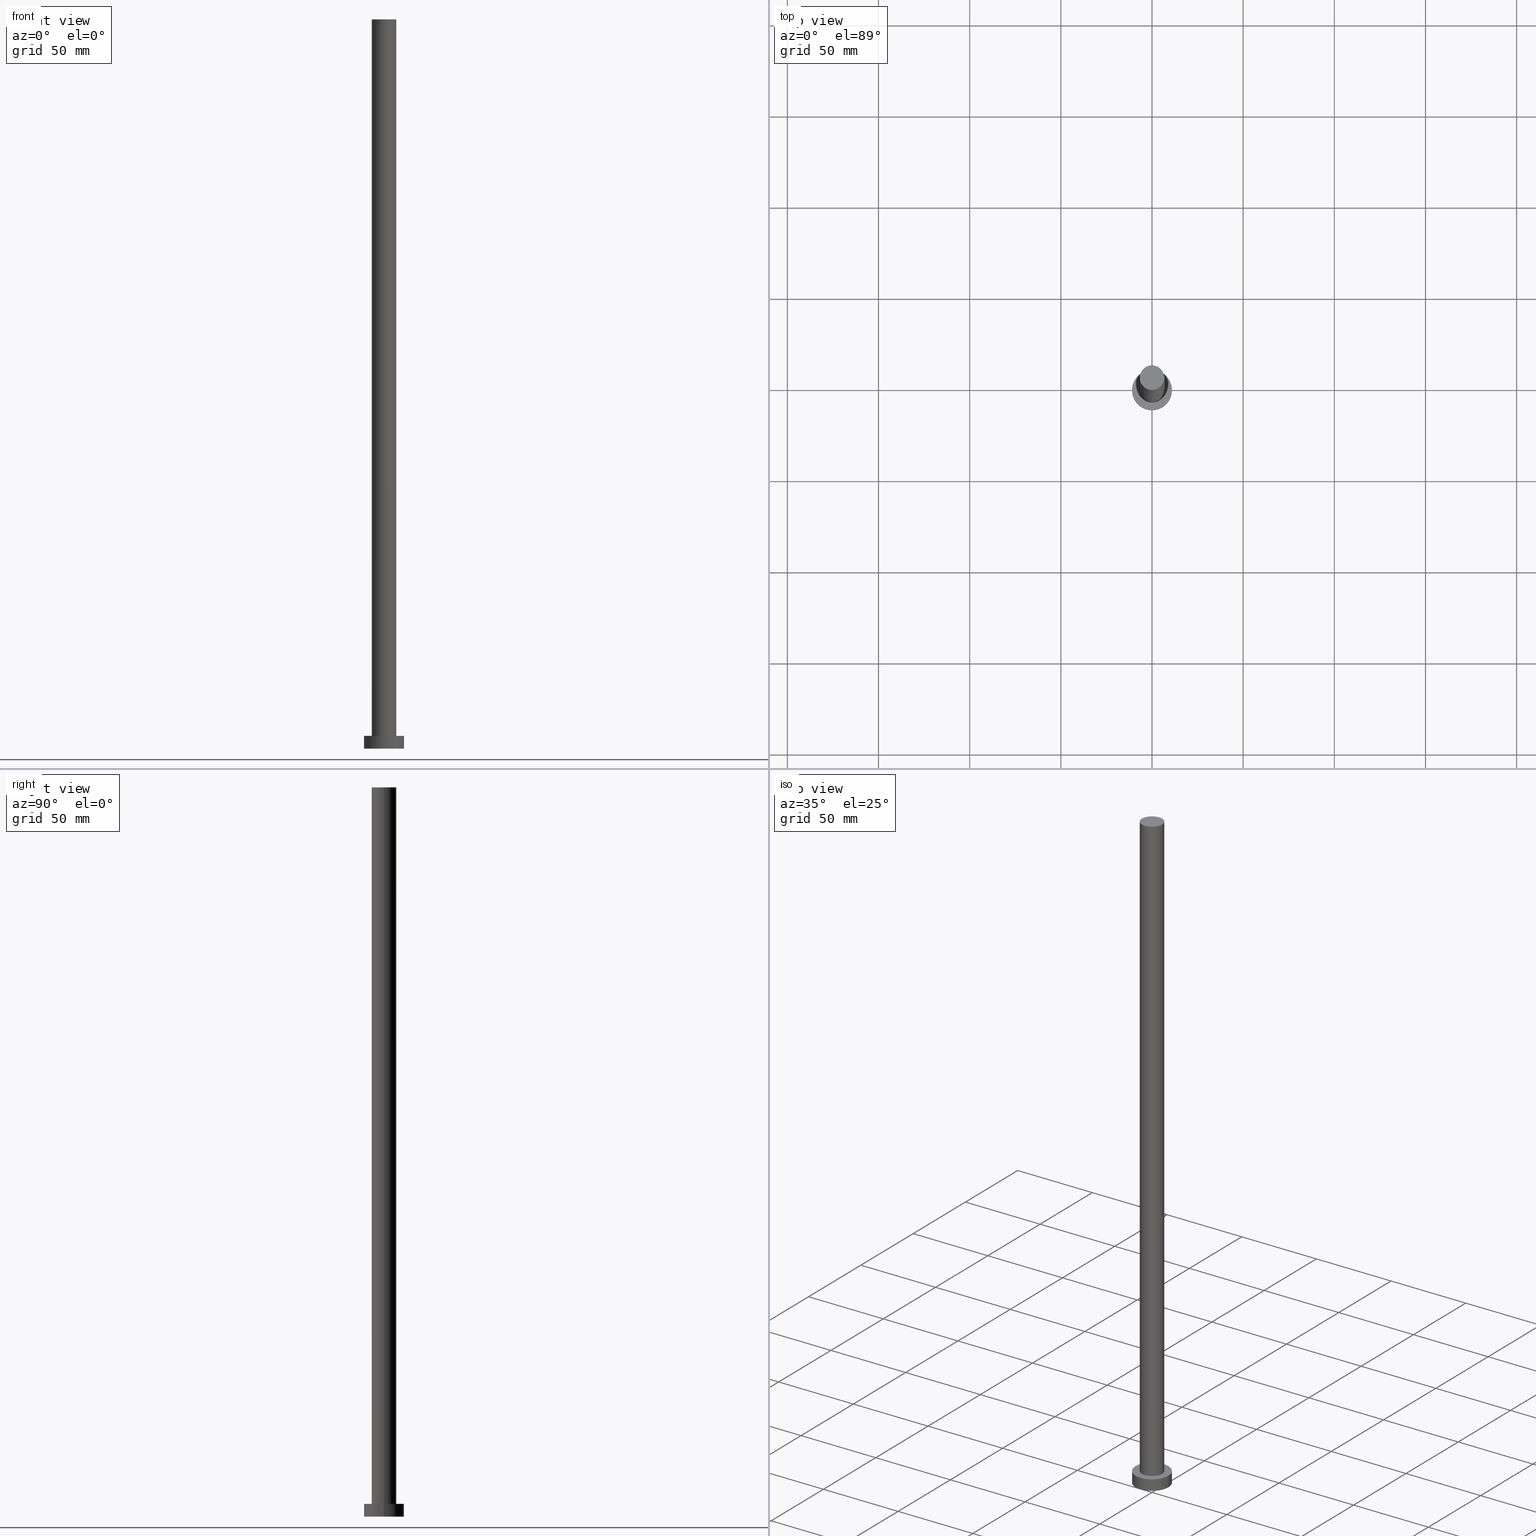
[diagram: canonical four-view strip — front | top / right | iso, engineering-drawing reading convention]
A machine part, canonical four-view strip (front | top / right | iso — engineering-drawing reading convention). The complete STEP part file that produces these views, byte-faithful:
ISO-10303-21;
HEADER;
FILE_DESCRIPTION (( 'STEP AP203' ),
    '1' );
FILE_NAME ('d360.STEP',
    '2023-02-13T10:44:24',
    ( '' ),
    ( '' ),
    'SwSTEP 2.0',
    'SolidWorks 2019',
    '' );
FILE_SCHEMA (( 'CONFIG_CONTROL_DESIGN' ));
ENDSEC;

DATA;
#1 = EDGE_CURVE ( 'NONE', #122, #144, #81, .T. ) ;
#2 = PRODUCT_DEFINITION_SHAPE ( 'NONE', 'NONE',  #117 ) ;
#3 = ORIENTED_EDGE ( 'NONE', *, *, #1, .F. ) ;
#4 = LOCAL_TIME ( 11, 44, 24.00000000000000000, #175 ) ;
#5 = CALENDAR_DATE ( 2023, 13, 2 ) ;
#6 = VERTEX_POINT ( 'NONE', #223 ) ;
#7 = MECHANICAL_CONTEXT ( 'NONE', #124, 'mechanical' ) ;
#8 = APPLICATION_PROTOCOL_DEFINITION ( 'international standard', 'config_control_design', 1994, #89 ) ;
#9 = CC_DESIGN_PERSON_AND_ORGANIZATION_ASSIGNMENT ( #218, #77, ( #86 ) ) ;
#10 = DESIGN_CONTEXT ( 'detailed design', #89, 'design' ) ;
#11 = EDGE_LOOP ( 'NONE', ( #36, #118 ) ) ;
#12 = CIRCLE ( 'NONE', #154, 11.00000000000000000 ) ;
#13 = APPROVAL_PERSON_ORGANIZATION ( #153, #207, #38 ) ;
#14 = CARTESIAN_POINT ( 'NONE',  ( 11.00000000000000000, 1.347111479062088405E-15, 7.000000000000000000 ) ) ;
#15 = CARTESIAN_POINT ( 'NONE',  ( 0.000000000000000000, 0.000000000000000000, 7.000000000000000000 ) ) ;
#16 = DIRECTION ( 'NONE',  ( 1.000000000000000000, 0.000000000000000000, -0.000000000000000000 ) ) ;
#17 = CC_DESIGN_APPROVAL ( #207, ( #117 ) ) ;
#18 = CARTESIAN_POINT ( 'NONE',  ( 6.750000000000000000, 8.266365894244634333E-16, 400.0000000000000000 ) ) ;
#19 = CARTESIAN_POINT ( 'NONE',  ( 0.000000000000000000, 0.000000000000000000, 400.0000000000000000 ) ) ;
#20 = PERSON_AND_ORGANIZATION ( #125, #182 ) ;
#21 = ORIENTED_EDGE ( 'NONE', *, *, #1, .T. ) ;
#22 = AXIS2_PLACEMENT_3D ( 'NONE', #26, #102, #143 ) ;
#23 = PERSON_AND_ORGANIZATION ( #125, #182 ) ;
#24 = EDGE_LOOP ( 'NONE', ( #138, #58, #21, #98 ) ) ;
#25 = SECURITY_CLASSIFICATION ( '', '', #197 ) ;
#26 = CARTESIAN_POINT ( 'NONE',  ( 0.000000000000000000, 0.000000000000000000, 0.000000000000000000 ) ) ;
#27 = PERSON_AND_ORGANIZATION ( #125, #182 ) ;
#28 = APPLICATION_PROTOCOL_DEFINITION ( 'international standard', 'config_control_design', 1994, #124 ) ;
#29 = CALENDAR_DATE ( 2023, 13, 2 ) ;
#30 = FACE_BOUND ( 'NONE', #202, .T. ) ;
#31 = DIRECTION ( 'NONE',  ( 1.000000000000000000, 0.000000000000000000, 0.000000000000000000 ) ) ;
#32 = DIRECTION ( 'NONE',  ( -0.000000000000000000, -0.000000000000000000, -1.000000000000000000 ) ) ;
#33 = CYLINDRICAL_SURFACE ( 'NONE', #76, 6.750000000000000000 ) ;
#34 = DIRECTION ( 'NONE',  ( 1.000000000000000000, 0.000000000000000000, 0.000000000000000000 ) ) ;
#35 = PERSON_AND_ORGANIZATION ( #125, #182 ) ;
#36 = ORIENTED_EDGE ( 'NONE', *, *, #180, .F. ) ;
#37 = APPROVAL_PERSON_ORGANIZATION ( #82, #52, #65 ) ;
#38 = APPROVAL_ROLE ( '' ) ;
#39 = DATE_AND_TIME ( #217, #231 ) ;
#40 = ADVANCED_FACE ( 'NONE', ( #83 ), #164, .T. ) ;
#41 = DIRECTION ( 'NONE',  ( 0.000000000000000000, 0.000000000000000000, 1.000000000000000000 ) ) ;
#42 = EDGE_LOOP ( 'NONE', ( #237, #54, #137, #3 ) ) ;
#43 = APPROVAL_STATUS ( 'not_yet_approved' ) ;
#44 = AXIS2_PLACEMENT_3D ( 'NONE', #194, #251, #233 ) ;
#45 = FACE_OUTER_BOUND ( 'NONE', #228, .T. ) ;
#46 = PLANE ( 'NONE',  #133 ) ;
#47 = LOCAL_TIME ( 11, 44, 24.00000000000000000, #201 ) ;
#48 = CARTESIAN_POINT ( 'NONE',  ( 0.000000000000000000, 0.000000000000000000, 7.000000000000000000 ) ) ;
#49 = EDGE_CURVE ( 'NONE', #177, #122, #214, .T. ) ;
#50 = DIRECTION ( 'NONE',  ( -1.000000000000000000, 0.000000000000000000, 0.000000000000000000 ) ) ;
#51 = DIRECTION ( 'NONE',  ( 1.000000000000000000, 0.000000000000000000, 0.000000000000000000 ) ) ;
#52 = APPROVAL ( #43, 'NEUR�EN�' ) ;
#53 = APPROVAL_DATE_TIME ( #120, #207 ) ;
#54 = ORIENTED_EDGE ( 'NONE', *, *, #151, .T. ) ;
#55 = DIRECTION ( 'NONE',  ( -0.000000000000000000, -0.000000000000000000, -1.000000000000000000 ) ) ;
#56 = APPROVAL_PERSON_ORGANIZATION ( #157, #221, #241 ) ;
#57 = ORIENTED_EDGE ( 'NONE', *, *, #136, .T. ) ;
#58 = ORIENTED_EDGE ( 'NONE', *, *, #203, .F. ) ;
#59 = EDGE_LOOP ( 'NONE', ( #96, #179, #181, #205 ) ) ;
#60 = COORDINATED_UNIVERSAL_TIME_OFFSET ( 1, 0, .AHEAD. ) ;
#61 = AXIS2_PLACEMENT_3D ( 'NONE', #15, #32, #50 ) ;
#62 = CIRCLE ( 'NONE', #72, 11.00000000000000000 ) ;
#63 = VECTOR ( 'NONE', #55, 1000.000000000000000 ) ;
#64 = CARTESIAN_POINT ( 'NONE',  ( 0.000000000000000000, 0.000000000000000000, 7.000000000000000000 ) ) ;
#65 = APPROVAL_ROLE ( '' ) ;
#66 = DIRECTION ( 'NONE',  ( 1.000000000000000000, 0.000000000000000000, 0.000000000000000000 ) ) ;
#67 = ADVANCED_FACE ( 'NONE', ( #69 ), #209, .T. ) ;
#68 = CIRCLE ( 'NONE', #244, 6.750000000000000000 ) ;
#69 = FACE_OUTER_BOUND ( 'NONE', #42, .T. ) ;
#70 = LINE ( 'NONE', #14, #160 ) ;
#71 = CC_DESIGN_PERSON_AND_ORGANIZATION_ASSIGNMENT ( #23, #97, ( #117 ) ) ;
#72 = AXIS2_PLACEMENT_3D ( 'NONE', #78, #238, #114 ) ;
#73 = DATE_AND_TIME ( #255, #4 ) ;
#74 = APPROVAL_STATUS ( 'not_yet_approved' ) ;
#75 = PRODUCT_RELATED_PRODUCT_CATEGORY ( 'detail', '', ( #86 ) ) ;
#76 = AXIS2_PLACEMENT_3D ( 'NONE', #19, #110, #94 ) ;
#77 = PERSON_AND_ORGANIZATION_ROLE ( 'design_owner' ) ;
#78 = CARTESIAN_POINT ( 'NONE',  ( 0.000000000000000000, 0.000000000000000000, 7.000000000000000000 ) ) ;
#79 = ORIENTED_EDGE ( 'NONE', *, *, #203, .T. ) ;
#80 = COORDINATED_UNIVERSAL_TIME_OFFSET ( 1, 0, .AHEAD. ) ;
#81 = LINE ( 'NONE', #245, #210 ) ;
#82 = PERSON_AND_ORGANIZATION ( #125, #182 ) ;
#83 = FACE_OUTER_BOUND ( 'NONE', #159, .T. ) ;
#84 = SHAPE_DEFINITION_REPRESENTATION ( #2, #141 ) ;
#85 = DIRECTION ( 'NONE',  ( 1.000000000000000000, 0.000000000000000000, -0.000000000000000000 ) ) ;
#86 = PRODUCT ( 'd360', 'd360', '', ( #7 ) ) ;
#87 = CLOSED_SHELL ( 'NONE', ( #67, #116, #113, #131, #158, #165, #40 ) ) ;
#88 = CARTESIAN_POINT ( 'NONE',  ( -6.750000000000000000, 0.000000000000000000, 7.000000000000000000 ) ) ;
#89 = APPLICATION_CONTEXT ( 'configuration controlled 3d designs of mechanical parts and assemblies' ) ;
#90 = EDGE_CURVE ( 'NONE', #144, #186, #247, .T. ) ;
#91 = CARTESIAN_POINT ( 'NONE',  ( 0.000000000000000000, 0.000000000000000000, 7.000000000000000000 ) ) ;
#92 = CYLINDRICAL_SURFACE ( 'NONE', #111, 11.00000000000000000 ) ;
#93 = CARTESIAN_POINT ( 'NONE',  ( 0.000000000000000000, 0.000000000000000000, 0.000000000000000000 ) ) ;
#94 = DIRECTION ( 'NONE',  ( -1.000000000000000000, 0.000000000000000000, 0.000000000000000000 ) ) ;
#95 = PERSON_AND_ORGANIZATION_ROLE ( 'classification_officer' ) ;
#96 = ORIENTED_EDGE ( 'NONE', *, *, #136, .F. ) ;
#97 = PERSON_AND_ORGANIZATION_ROLE ( 'creator' ) ;
#98 = ORIENTED_EDGE ( 'NONE', *, *, #90, .T. ) ;
#99 = EDGE_CURVE ( 'NONE', #6, #225, #106, .T. ) ;
#100 = ORIENTED_EDGE ( 'NONE', *, *, #226, .F. ) ;
#101 = CC_DESIGN_DATE_AND_TIME_ASSIGNMENT ( #73, #145, ( #25 ) ) ;
#102 = DIRECTION ( 'NONE',  ( 0.000000000000000000, 0.000000000000000000, 1.000000000000000000 ) ) ;
#103 = PERSON_AND_ORGANIZATION_ROLE ( 'creator' ) ;
#104 = CC_DESIGN_APPROVAL ( #52, ( #25 ) ) ;
#105 = DIRECTION ( 'NONE',  ( -0.000000000000000000, -0.000000000000000000, -1.000000000000000000 ) ) ;
#106 = CIRCLE ( 'NONE', #199, 11.00000000000000000 ) ;
#107 = DIRECTION ( 'NONE',  ( 0.000000000000000000, 0.000000000000000000, 1.000000000000000000 ) ) ;
#108 = CARTESIAN_POINT ( 'NONE',  ( 0.000000000000000000, 0.000000000000000000, 400.0000000000000000 ) ) ;
#109 = DIRECTION ( 'NONE',  ( 0.000000000000000000, 0.000000000000000000, 1.000000000000000000 ) ) ;
#110 = DIRECTION ( 'NONE',  ( -0.000000000000000000, -0.000000000000000000, -1.000000000000000000 ) ) ;
#111 = AXIS2_PLACEMENT_3D ( 'NONE', #248, #234, #190 ) ;
#112 = CARTESIAN_POINT ( 'NONE',  ( -6.750000000000000000, 0.000000000000000000, 400.0000000000000000 ) ) ;
#113 = ADVANCED_FACE ( 'NONE', ( #232 ), #92, .T. ) ;
#114 = DIRECTION ( 'NONE',  ( 1.000000000000000000, 0.000000000000000000, 0.000000000000000000 ) ) ;
#115 = ORIENTED_EDGE ( 'NONE', *, *, #99, .F. ) ;
#116 = ADVANCED_FACE ( 'NONE', ( #129 ), #170, .T. ) ;
#117 = PRODUCT_DEFINITION ( 'NEZN�M�', '', #200, #10 ) ;
#118 = ORIENTED_EDGE ( 'NONE', *, *, #253, .F. ) ;
#119 = AXIS2_PLACEMENT_3D ( 'NONE', #246, #208, #85 ) ;
#120 = DATE_AND_TIME ( #121, #162 ) ;
#121 = CALENDAR_DATE ( 2023, 13, 2 ) ;
#122 = VERTEX_POINT ( 'NONE', #112 ) ;
#123 = ORIENTED_EDGE ( 'NONE', *, *, #49, .T. ) ;
#124 = APPLICATION_CONTEXT ( 'configuration controlled 3d designs of mechanical parts and assemblies' ) ;
#125 = PERSON ( 'NEUR�EN�', 'NEUR�EN�', 'NEUR�EN�', ('NEUR�EN�'), ('NEUR�EN�'), ('NEUR�EN�') ) ;
#126 = PLANE ( 'NONE',  #243 ) ;
#127 = AXIS2_PLACEMENT_3D ( 'NONE', #166, #150, #212 ) ;
#128 = DIRECTION ( 'NONE',  ( 0.000000000000000000, 0.000000000000000000, 1.000000000000000000 ) ) ;
#129 = FACE_OUTER_BOUND ( 'NONE', #183, .T. ) ;
#130 = CARTESIAN_POINT ( 'NONE',  ( 6.750000000000000000, 8.266365894244634333E-16, 400.0000000000000000 ) ) ;
#131 = ADVANCED_FACE ( 'NONE', ( #30, #45 ), #126, .T. ) ;
#132 = CARTESIAN_POINT ( 'NONE',  ( 6.750000000000000000, 8.266365894244634333E-16, 7.000000000000000000 ) ) ;
#133 = AXIS2_PLACEMENT_3D ( 'NONE', #152, #128, #250 ) ;
#134 = APPROVAL_STATUS ( 'not_yet_approved' ) ;
#135 =( NAMED_UNIT ( * ) SI_UNIT ( $, .STERADIAN. ) SOLID_ANGLE_UNIT ( ) );
#136 = EDGE_CURVE ( 'NONE', #6, #156, #70, .T. ) ;
#137 = ORIENTED_EDGE ( 'NONE', *, *, #184, .T. ) ;
#138 = ORIENTED_EDGE ( 'NONE', *, *, #151, .F. ) ;
#139 = CIRCLE ( 'NONE', #176, 6.750000000000000000 ) ;
#140 =( LENGTH_UNIT ( ) NAMED_UNIT ( * ) SI_UNIT ( .MILLI., .METRE. ) );
#141 = ADVANCED_BREP_SHAPE_REPRESENTATION ( 'd360', ( #169, #172 ), #187 ) ;
#142 = ORIENTED_EDGE ( 'NONE', *, *, #184, .F. ) ;
#143 = DIRECTION ( 'NONE',  ( 1.000000000000000000, 0.000000000000000000, 0.000000000000000000 ) ) ;
#144 = VERTEX_POINT ( 'NONE', #88 ) ;
#145 = DATE_TIME_ROLE ( 'classification_date' ) ;
#146 = CC_DESIGN_PERSON_AND_ORGANIZATION_ASSIGNMENT ( #20, #95, ( #25 ) ) ;
#147 = ORIENTED_EDGE ( 'NONE', *, *, #240, .T. ) ;
#148 = DIRECTION ( 'NONE',  ( -0.000000000000000000, -0.000000000000000000, -1.000000000000000000 ) ) ;
#149 = DIRECTION ( 'NONE',  ( 0.000000000000000000, 0.000000000000000000, 1.000000000000000000 ) ) ;
#150 = DIRECTION ( 'NONE',  ( 0.000000000000000000, 0.000000000000000000, 1.000000000000000000 ) ) ;
#151 = EDGE_CURVE ( 'NONE', #177, #186, #168, .T. ) ;
#152 = CARTESIAN_POINT ( 'NONE',  ( 0.000000000000000000, 0.000000000000000000, 0.000000000000000000 ) ) ;
#153 = PERSON_AND_ORGANIZATION ( #125, #182 ) ;
#154 = AXIS2_PLACEMENT_3D ( 'NONE', #93, #173, #51 ) ;
#155 = CARTESIAN_POINT ( 'NONE',  ( 0.000000000000000000, 0.000000000000000000, 0.000000000000000000 ) ) ;
#156 = VERTEX_POINT ( 'NONE', #213 ) ;
#157 = PERSON_AND_ORGANIZATION ( #125, #182 ) ;
#158 = ADVANCED_FACE ( 'NONE', ( #252 ), #46, .F. ) ;
#159 = EDGE_LOOP ( 'NONE', ( #79, #123 ) ) ;
#160 = VECTOR ( 'NONE', #148, 1000.000000000000000 ) ;
#161 =( NAMED_UNIT ( * ) PLANE_ANGLE_UNIT ( ) SI_UNIT ( $, .RADIAN. ) );
#162 = LOCAL_TIME ( 11, 44, 24.00000000000000000, #198 ) ;
#163 = ORIENTED_EDGE ( 'NONE', *, *, #253, .T. ) ;
#164 = PLANE ( 'NONE',  #119 ) ;
#165 = ADVANCED_FACE ( 'NONE', ( #211 ), #33, .T. ) ;
#166 = CARTESIAN_POINT ( 'NONE',  ( 0.000000000000000000, 0.000000000000000000, 400.0000000000000000 ) ) ;
#167 = DIRECTION ( 'NONE',  ( 0.000000000000000000, 0.000000000000000000, 1.000000000000000000 ) ) ;
#168 = LINE ( 'NONE', #130, #193 ) ;
#169 = MANIFOLD_SOLID_BREP ( 'P�idat vysunut�m3', #87 ) ;
#170 = CYLINDRICAL_SURFACE ( 'NONE', #61, 11.00000000000000000 ) ;
#171 = CC_DESIGN_PERSON_AND_ORGANIZATION_ASSIGNMENT ( #35, #185, ( #200 ) ) ;
#172 = AXIS2_PLACEMENT_3D ( 'NONE', #155, #41, #219 ) ;
#173 = DIRECTION ( 'NONE',  ( 0.000000000000000000, 0.000000000000000000, 1.000000000000000000 ) ) ;
#174 = CARTESIAN_POINT ( 'NONE',  ( -11.00000000000000000, 0.000000000000000000, 0.000000000000000000 ) ) ;
#175 = COORDINATED_UNIVERSAL_TIME_OFFSET ( 1, 0, .AHEAD. ) ;
#176 = AXIS2_PLACEMENT_3D ( 'NONE', #91, #109, #31 ) ;
#177 = VERTEX_POINT ( 'NONE', #18 ) ;
#178 = DATE_TIME_ROLE ( 'creation_date' ) ;
#179 = ORIENTED_EDGE ( 'NONE', *, *, #240, .F. ) ;
#180 = EDGE_CURVE ( 'NONE', #188, #156, #12, .T. ) ;
#181 = ORIENTED_EDGE ( 'NONE', *, *, #226, .T. ) ;
#182 = ORGANIZATION ( 'NEUR�EN�', 'NEUR�EN�', '' ) ;
#183 = EDGE_LOOP ( 'NONE', ( #115, #57, #163, #100 ) ) ;
#184 = EDGE_CURVE ( 'NONE', #186, #144, #139, .T. ) ;
#185 = PERSON_AND_ORGANIZATION_ROLE ( 'design_supplier' ) ;
#186 = VERTEX_POINT ( 'NONE', #132 ) ;
#187 =( GEOMETRIC_REPRESENTATION_CONTEXT ( 3 ) GLOBAL_UNCERTAINTY_ASSIGNED_CONTEXT ( ( #249 ) ) GLOBAL_UNIT_ASSIGNED_CONTEXT ( ( #140, #161, #135 ) ) REPRESENTATION_CONTEXT ( 'NONE', 'WORKASPACE' ) );
#188 = VERTEX_POINT ( 'NONE', #174 ) ;
#189 = APPROVAL_DATE_TIME ( #227, #52 ) ;
#190 = DIRECTION ( 'NONE',  ( -1.000000000000000000, 0.000000000000000000, 0.000000000000000000 ) ) ;
#191 = CARTESIAN_POINT ( 'NONE',  ( -11.00000000000000000, 0.000000000000000000, 7.000000000000000000 ) ) ;
#192 = DIRECTION ( 'NONE',  ( 1.000000000000000000, 0.000000000000000000, 0.000000000000000000 ) ) ;
#193 = VECTOR ( 'NONE', #230, 1000.000000000000000 ) ;
#194 = CARTESIAN_POINT ( 'NONE',  ( 0.000000000000000000, 0.000000000000000000, 400.0000000000000000 ) ) ;
#195 = LINE ( 'NONE', #254, #63 ) ;
#196 = CC_DESIGN_DATE_AND_TIME_ASSIGNMENT ( #235, #178, ( #117 ) ) ;
#197 = SECURITY_CLASSIFICATION_LEVEL ( 'unclassified' ) ;
#198 = COORDINATED_UNIVERSAL_TIME_OFFSET ( 1, 0, .AHEAD. ) ;
#199 = AXIS2_PLACEMENT_3D ( 'NONE', #64, #149, #192 ) ;
#200 = PRODUCT_DEFINITION_FORMATION_WITH_SPECIFIED_SOURCE ( 'LIBOVOLN�', '', #86, .NOT_KNOWN. ) ;
#201 = COORDINATED_UNIVERSAL_TIME_OFFSET ( 1, 0, .AHEAD. ) ;
#202 = EDGE_LOOP ( 'NONE', ( #224, #142 ) ) ;
#203 = EDGE_CURVE ( 'NONE', #122, #177, #68, .T. ) ;
#204 = APPROVAL_DATE_TIME ( #39, #221 ) ;
#205 = ORIENTED_EDGE ( 'NONE', *, *, #180, .T. ) ;
#206 = CC_DESIGN_APPROVAL ( #221, ( #200 ) ) ;
#207 = APPROVAL ( #74, 'NEUR�EN�' ) ;
#208 = DIRECTION ( 'NONE',  ( 0.000000000000000000, 0.000000000000000000, 1.000000000000000000 ) ) ;
#209 = CYLINDRICAL_SURFACE ( 'NONE', #44, 6.750000000000000000 ) ;
#210 = VECTOR ( 'NONE', #105, 1000.000000000000000 ) ;
#211 = FACE_OUTER_BOUND ( 'NONE', #24, .T. ) ;
#212 = DIRECTION ( 'NONE',  ( 1.000000000000000000, 0.000000000000000000, 0.000000000000000000 ) ) ;
#213 = CARTESIAN_POINT ( 'NONE',  ( 11.00000000000000000, 1.347111479062088405E-15, 0.000000000000000000 ) ) ;
#214 = CIRCLE ( 'NONE', #127, 6.750000000000000000 ) ;
#215 = DIRECTION ( 'NONE',  ( 0.000000000000000000, 0.000000000000000000, 1.000000000000000000 ) ) ;
#216 = CIRCLE ( 'NONE', #22, 11.00000000000000000 ) ;
#217 = CALENDAR_DATE ( 2023, 13, 2 ) ;
#218 = PERSON_AND_ORGANIZATION ( #125, #182 ) ;
#219 = DIRECTION ( 'NONE',  ( 1.000000000000000000, 0.000000000000000000, 0.000000000000000000 ) ) ;
#220 = CC_DESIGN_PERSON_AND_ORGANIZATION_ASSIGNMENT ( #27, #103, ( #200 ) ) ;
#221 = APPROVAL ( #134, 'NEUR�EN�' ) ;
#222 = LOCAL_TIME ( 11, 44, 24.00000000000000000, #80 ) ;
#223 = CARTESIAN_POINT ( 'NONE',  ( 11.00000000000000000, 1.347111479062088405E-15, 7.000000000000000000 ) ) ;
#224 = ORIENTED_EDGE ( 'NONE', *, *, #90, .F. ) ;
#225 = VERTEX_POINT ( 'NONE', #191 ) ;
#226 = EDGE_CURVE ( 'NONE', #225, #188, #195, .T. ) ;
#227 = DATE_AND_TIME ( #29, #222 ) ;
#228 = EDGE_LOOP ( 'NONE', ( #147, #242 ) ) ;
#229 = CARTESIAN_POINT ( 'NONE',  ( 0.000000000000000000, 0.000000000000000000, 7.000000000000000000 ) ) ;
#230 = DIRECTION ( 'NONE',  ( -0.000000000000000000, -0.000000000000000000, -1.000000000000000000 ) ) ;
#231 = LOCAL_TIME ( 11, 44, 24.00000000000000000, #60 ) ;
#232 = FACE_OUTER_BOUND ( 'NONE', #59, .T. ) ;
#233 = DIRECTION ( 'NONE',  ( -1.000000000000000000, 0.000000000000000000, 0.000000000000000000 ) ) ;
#234 = DIRECTION ( 'NONE',  ( -0.000000000000000000, -0.000000000000000000, -1.000000000000000000 ) ) ;
#235 = DATE_AND_TIME ( #5, #47 ) ;
#236 = CC_DESIGN_SECURITY_CLASSIFICATION ( #25, ( #200 ) ) ;
#237 = ORIENTED_EDGE ( 'NONE', *, *, #49, .F. ) ;
#238 = DIRECTION ( 'NONE',  ( 0.000000000000000000, 0.000000000000000000, 1.000000000000000000 ) ) ;
#239 = AXIS2_PLACEMENT_3D ( 'NONE', #229, #167, #66 ) ;
#240 = EDGE_CURVE ( 'NONE', #225, #6, #62, .T. ) ;
#241 = APPROVAL_ROLE ( '' ) ;
#242 = ORIENTED_EDGE ( 'NONE', *, *, #99, .T. ) ;
#243 = AXIS2_PLACEMENT_3D ( 'NONE', #48, #107, #16 ) ;
#244 = AXIS2_PLACEMENT_3D ( 'NONE', #108, #215, #34 ) ;
#245 = CARTESIAN_POINT ( 'NONE',  ( -6.750000000000000000, 0.000000000000000000, 400.0000000000000000 ) ) ;
#246 = CARTESIAN_POINT ( 'NONE',  ( 0.000000000000000000, 0.000000000000000000, 400.0000000000000000 ) ) ;
#247 = CIRCLE ( 'NONE', #239, 6.750000000000000000 ) ;
#248 = CARTESIAN_POINT ( 'NONE',  ( 0.000000000000000000, 0.000000000000000000, 7.000000000000000000 ) ) ;
#249 = UNCERTAINTY_MEASURE_WITH_UNIT (LENGTH_MEASURE( 1.000000000000000082E-05 ), #140, 'distance_accuracy_value', 'NONE');
#250 = DIRECTION ( 'NONE',  ( 1.000000000000000000, 0.000000000000000000, -0.000000000000000000 ) ) ;
#251 = DIRECTION ( 'NONE',  ( -0.000000000000000000, -0.000000000000000000, -1.000000000000000000 ) ) ;
#252 = FACE_OUTER_BOUND ( 'NONE', #11, .T. ) ;
#253 = EDGE_CURVE ( 'NONE', #156, #188, #216, .T. ) ;
#254 = CARTESIAN_POINT ( 'NONE',  ( -11.00000000000000000, 0.000000000000000000, 7.000000000000000000 ) ) ;
#255 = CALENDAR_DATE ( 2023, 13, 2 ) ;
ENDSEC;
END-ISO-10303-21;
